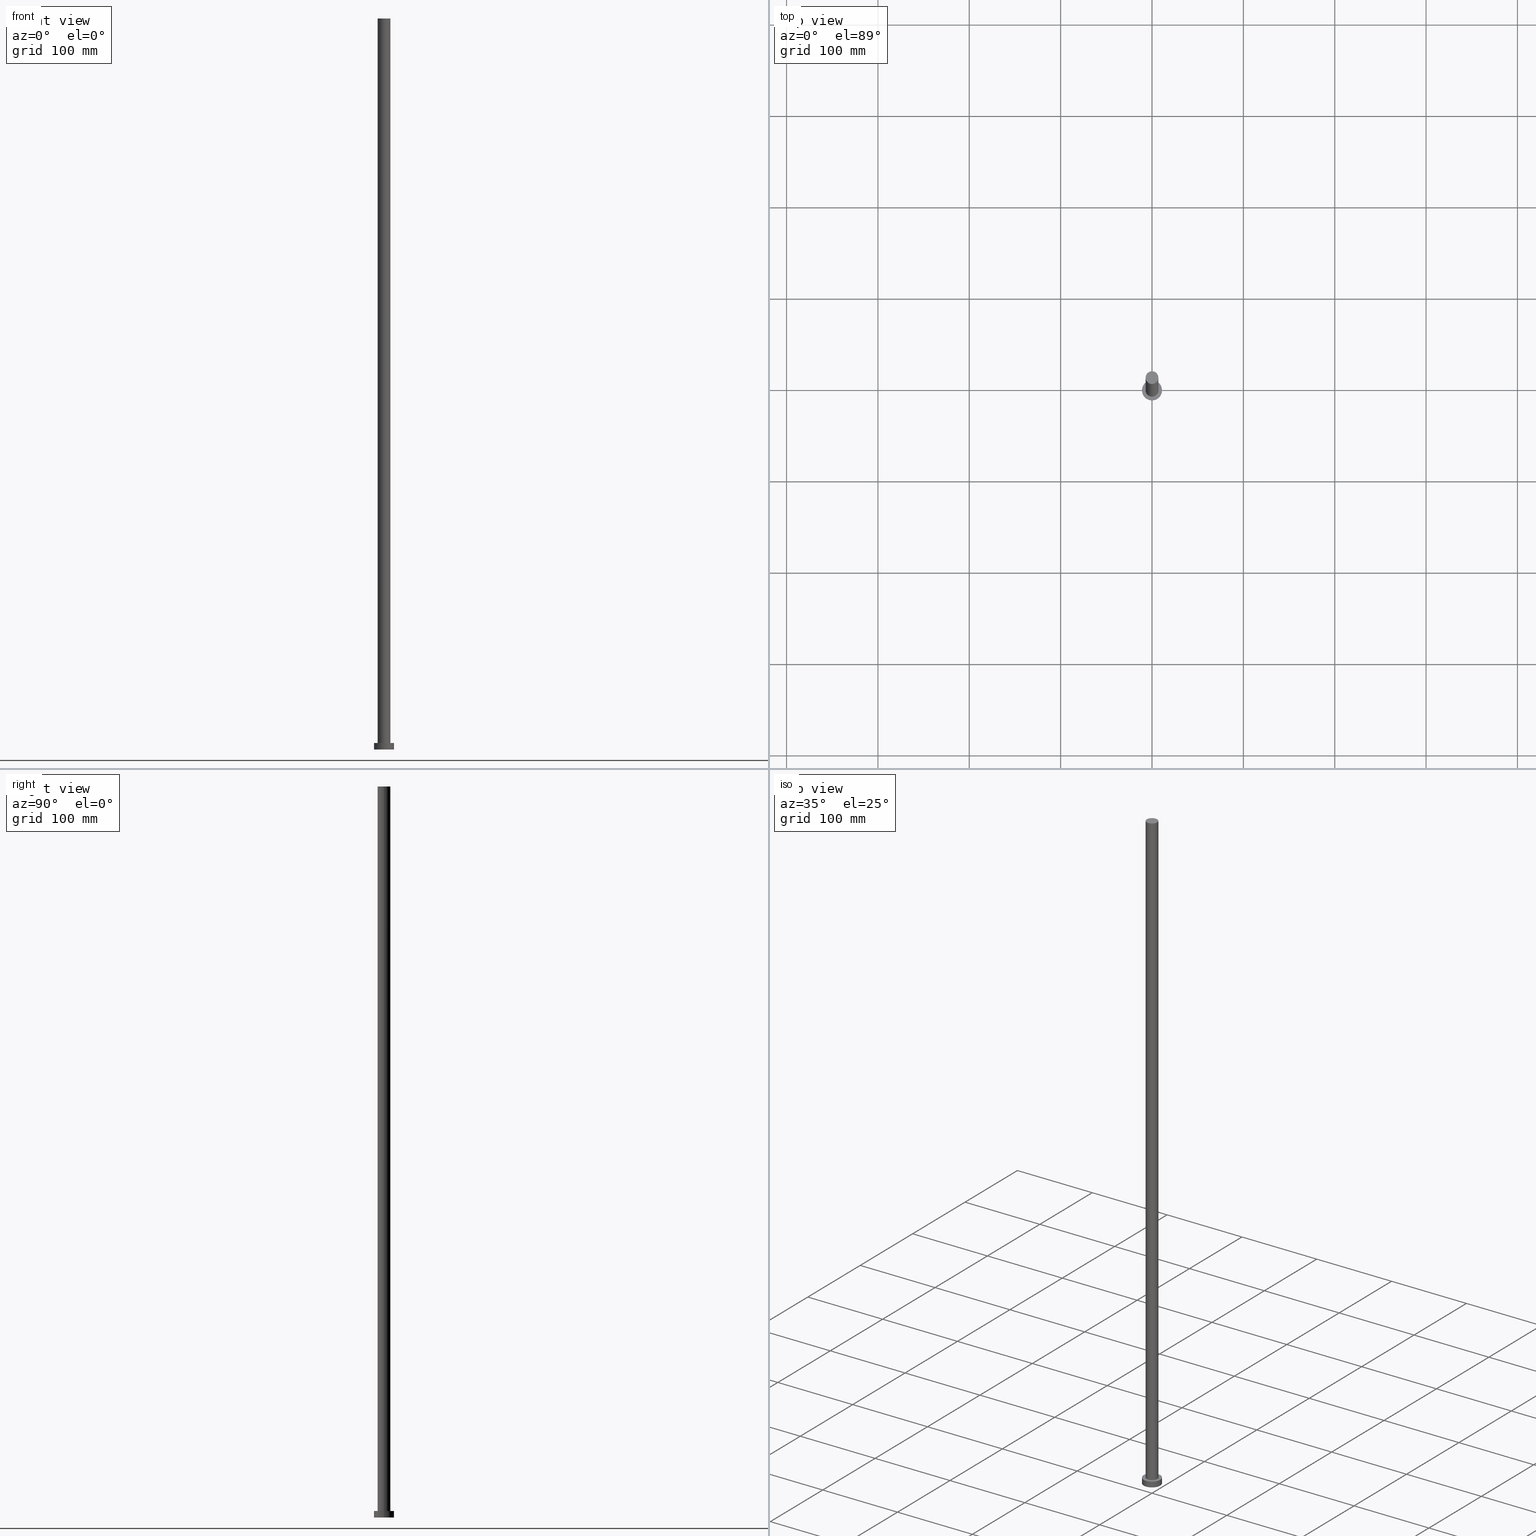
[diagram: canonical four-view strip — front | top / right | iso, engineering-drawing reading convention]
A machine part, canonical four-view strip (front | top / right | iso — engineering-drawing reading convention). The complete STEP part file that produces these views, byte-faithful:
ISO-10303-21;
HEADER;
FILE_DESCRIPTION (( 'STEP AP203' ),
    '1' );
FILE_NAME ('0291.STEP',
    '2023-02-13T08:53:59',
    ( '' ),
    ( '' ),
    'SwSTEP 2.0',
    'SolidWorks 2019',
    '' );
FILE_SCHEMA (( 'CONFIG_CONTROL_DESIGN' ));
ENDSEC;

DATA;
#1 = VERTEX_POINT ( 'NONE', #28 ) ;
#2 = CARTESIAN_POINT ( 'NONE',  ( 11.00000000000000000, 1.347111479062088405E-15, 7.000000000000000000 ) ) ;
#3 = DIRECTION ( 'NONE',  ( -1.000000000000000000, 0.000000000000000000, 0.000000000000000000 ) ) ;
#4 = CC_DESIGN_PERSON_AND_ORGANIZATION_ASSIGNMENT ( #186, #188, ( #31 ) ) ;
#5 = DIRECTION ( 'NONE',  ( 0.000000000000000000, 0.000000000000000000, 1.000000000000000000 ) ) ;
#6 = APPLICATION_PROTOCOL_DEFINITION ( 'international standard', 'config_control_design', 1994, #167 ) ;
#7 = ORGANIZATION ( 'NEUR�EN�', 'NEUR�EN�', '' ) ;
#8 = PERSON_AND_ORGANIZATION_ROLE ( 'classification_officer' ) ;
#9 = CALENDAR_DATE ( 2023, 13, 2 ) ;
#10 = ORIENTED_EDGE ( 'NONE', *, *, #101, .T. ) ;
#11 = FACE_OUTER_BOUND ( 'NONE', #71, .T. ) ;
#12 = PRODUCT_RELATED_PRODUCT_CATEGORY ( 'detail', '', ( #134 ) ) ;
#13 = ORIENTED_EDGE ( 'NONE', *, *, #178, .T. ) ;
#14 = ORIENTED_EDGE ( 'NONE', *, *, #153, .F. ) ;
#15 = DIRECTION ( 'NONE',  ( 1.000000000000000000, 0.000000000000000000, 0.000000000000000000 ) ) ;
#16 = APPROVAL_PERSON_ORGANIZATION ( #224, #228, #78 ) ;
#17 = ADVANCED_FACE ( 'NONE', ( #254 ), #135, .T. ) ;
#18 = DIRECTION ( 'NONE',  ( -0.000000000000000000, -0.000000000000000000, -1.000000000000000000 ) ) ;
#19 = LINE ( 'NONE', #200, #99 ) ;
#20 = CARTESIAN_POINT ( 'NONE',  ( -7.000000000000000888, 0.000000000000000000, 800.0000000000000000 ) ) ;
#21 =( NAMED_UNIT ( * ) SI_UNIT ( $, .STERADIAN. ) SOLID_ANGLE_UNIT ( ) );
#22 = LOCAL_TIME ( 9, 53, 59.00000000000000000, #123 ) ;
#23 = DIRECTION ( 'NONE',  ( 1.000000000000000000, 0.000000000000000000, 0.000000000000000000 ) ) ;
#24 = ORIENTED_EDGE ( 'NONE', *, *, #101, .F. ) ;
#25 = PERSON_AND_ORGANIZATION ( #92, #7 ) ;
#26 = AXIS2_PLACEMENT_3D ( 'NONE', #109, #116, #180 ) ;
#27 = DATE_AND_TIME ( #68, #238 ) ;
#28 = CARTESIAN_POINT ( 'NONE',  ( 11.00000000000000000, 1.347111479062088405E-15, 7.000000000000000000 ) ) ;
#29 = DIRECTION ( 'NONE',  ( -0.000000000000000000, -0.000000000000000000, -1.000000000000000000 ) ) ;
#30 = AXIS2_PLACEMENT_3D ( 'NONE', #215, #112, #32 ) ;
#31 = PRODUCT_DEFINITION_FORMATION_WITH_SPECIFIED_SOURCE ( 'LIBOVOLN�', '', #134, .NOT_KNOWN. ) ;
#32 = DIRECTION ( 'NONE',  ( -1.000000000000000000, 0.000000000000000000, 0.000000000000000000 ) ) ;
#33 = DIRECTION ( 'NONE',  ( -0.000000000000000000, -0.000000000000000000, -1.000000000000000000 ) ) ;
#34 = ORIENTED_EDGE ( 'NONE', *, *, #178, .F. ) ;
#35 = CIRCLE ( 'NONE', #114, 7.000000000000000888 ) ;
#36 = APPLICATION_CONTEXT ( 'configuration controlled 3d designs of mechanical parts and assemblies' ) ;
#37 = ADVANCED_FACE ( 'NONE', ( #11 ), #212, .T. ) ;
#38 = DIRECTION ( 'NONE',  ( 1.000000000000000000, 0.000000000000000000, 0.000000000000000000 ) ) ;
#39 = DIRECTION ( 'NONE',  ( 1.000000000000000000, 0.000000000000000000, -0.000000000000000000 ) ) ;
#40 = FACE_OUTER_BOUND ( 'NONE', #177, .T. ) ;
#41 = ORIENTED_EDGE ( 'NONE', *, *, #85, .F. ) ;
#42 = EDGE_CURVE ( 'NONE', #50, #108, #94, .T. ) ;
#43 = DATE_TIME_ROLE ( 'classification_date' ) ;
#44 = LOCAL_TIME ( 9, 53, 59.00000000000000000, #63 ) ;
#45 = APPROVAL_DATE_TIME ( #106, #228 ) ;
#46 = APPROVAL_DATE_TIME ( #98, #107 ) ;
#47 = EDGE_CURVE ( 'NONE', #197, #154, #35, .T. ) ;
#48 = APPROVAL_DATE_TIME ( #170, #219 ) ;
#49 = DIRECTION ( 'NONE',  ( -1.000000000000000000, 0.000000000000000000, 0.000000000000000000 ) ) ;
#50 = VERTEX_POINT ( 'NONE', #130 ) ;
#51 = EDGE_LOOP ( 'NONE', ( #255, #81, #210, #214 ) ) ;
#52 = CIRCLE ( 'NONE', #79, 7.000000000000000888 ) ;
#53 = VERTEX_POINT ( 'NONE', #113 ) ;
#54 = EDGE_LOOP ( 'NONE', ( #233, #171 ) ) ;
#55 = CC_DESIGN_PERSON_AND_ORGANIZATION_ASSIGNMENT ( #25, #168, ( #134 ) ) ;
#56 = CC_DESIGN_APPROVAL ( #219, ( #31 ) ) ;
#57 = CARTESIAN_POINT ( 'NONE',  ( 0.000000000000000000, 0.000000000000000000, 800.0000000000000000 ) ) ;
#58 = CC_DESIGN_PERSON_AND_ORGANIZATION_ASSIGNMENT ( #248, #8, ( #206 ) ) ;
#59 = DIRECTION ( 'NONE',  ( -1.000000000000000000, 0.000000000000000000, 0.000000000000000000 ) ) ;
#60 =( NAMED_UNIT ( * ) PLANE_ANGLE_UNIT ( ) SI_UNIT ( $, .RADIAN. ) );
#61 = CARTESIAN_POINT ( 'NONE',  ( 0.000000000000000000, 0.000000000000000000, 7.000000000000000000 ) ) ;
#62 = CC_DESIGN_DATE_AND_TIME_ASSIGNMENT ( #207, #102, ( #249 ) ) ;
#63 = COORDINATED_UNIVERSAL_TIME_OFFSET ( 1, 0, .AHEAD. ) ;
#64 = AXIS2_PLACEMENT_3D ( 'NONE', #57, #120, #91 ) ;
#65 = APPLICATION_PROTOCOL_DEFINITION ( 'international standard', 'config_control_design', 1994, #36 ) ;
#66 = CIRCLE ( 'NONE', #161, 7.000000000000000888 ) ;
#67 = APPROVAL_ROLE ( '' ) ;
#68 = CALENDAR_DATE ( 2023, 13, 2 ) ;
#69 = CIRCLE ( 'NONE', #213, 7.000000000000000888 ) ;
#70 = DIRECTION ( 'NONE',  ( 0.000000000000000000, 0.000000000000000000, 1.000000000000000000 ) ) ;
#71 = EDGE_LOOP ( 'NONE', ( #34, #199, #253, #24 ) ) ;
#72 = DIRECTION ( 'NONE',  ( 1.000000000000000000, 0.000000000000000000, 0.000000000000000000 ) ) ;
#73 = DIRECTION ( 'NONE',  ( 1.000000000000000000, 0.000000000000000000, 0.000000000000000000 ) ) ;
#74 = DIRECTION ( 'NONE',  ( 1.000000000000000000, 0.000000000000000000, -0.000000000000000000 ) ) ;
#75 = DIRECTION ( 'NONE',  ( -0.000000000000000000, -0.000000000000000000, -1.000000000000000000 ) ) ;
#76 = LINE ( 'NONE', #163, #119 ) ;
#77 = AXIS2_PLACEMENT_3D ( 'NONE', #122, #220, #3 ) ;
#78 = APPROVAL_ROLE ( '' ) ;
#79 = AXIS2_PLACEMENT_3D ( 'NONE', #89, #70, #15 ) ;
#80 = CARTESIAN_POINT ( 'NONE',  ( 0.000000000000000000, 0.000000000000000000, 0.000000000000000000 ) ) ;
#81 = ORIENTED_EDGE ( 'NONE', *, *, #129, .T. ) ;
#82 = CC_DESIGN_APPROVAL ( #107, ( #249 ) ) ;
#83 = EDGE_LOOP ( 'NONE', ( #136, #13 ) ) ;
#84 = CARTESIAN_POINT ( 'NONE',  ( 0.000000000000000000, 0.000000000000000000, 7.000000000000000000 ) ) ;
#85 = EDGE_CURVE ( 'NONE', #235, #53, #52, .T. ) ;
#86 = ADVANCED_BREP_SHAPE_REPRESENTATION ( '0291', ( #96, #88 ), #251 ) ;
#87 = ORIENTED_EDGE ( 'NONE', *, *, #129, .F. ) ;
#88 = AXIS2_PLACEMENT_3D ( 'NONE', #80, #125, #23 ) ;
#89 = CARTESIAN_POINT ( 'NONE',  ( 0.000000000000000000, 0.000000000000000000, 800.0000000000000000 ) ) ;
#90 = EDGE_CURVE ( 'NONE', #108, #50, #149, .T. ) ;
#91 = DIRECTION ( 'NONE',  ( 1.000000000000000000, 0.000000000000000000, -0.000000000000000000 ) ) ;
#92 = PERSON ( 'NEUR�EN�', 'NEUR�EN�', 'NEUR�EN�', ('NEUR�EN�'), ('NEUR�EN�'), ('NEUR�EN�') ) ;
#93 = CARTESIAN_POINT ( 'NONE',  ( 7.000000000000000888, 8.572527594031474176E-16, 7.000000000000000000 ) ) ;
#94 = CIRCLE ( 'NONE', #246, 11.00000000000000000 ) ;
#95 = DIRECTION ( 'NONE',  ( -0.000000000000000000, -0.000000000000000000, -1.000000000000000000 ) ) ;
#96 = MANIFOLD_SOLID_BREP ( 'P�idat vysunut�m3', #176 ) ;
#97 = FACE_OUTER_BOUND ( 'NONE', #51, .T. ) ;
#98 = DATE_AND_TIME ( #9, #22 ) ;
#99 = VECTOR ( 'NONE', #95, 1000.000000000000000 ) ;
#100 = MECHANICAL_CONTEXT ( 'NONE', #36, 'mechanical' ) ;
#101 = EDGE_CURVE ( 'NONE', #235, #197, #152, .T. ) ;
#102 = DATE_TIME_ROLE ( 'creation_date' ) ;
#103 = CIRCLE ( 'NONE', #26, 11.00000000000000000 ) ;
#104 = APPROVAL_STATUS ( 'not_yet_approved' ) ;
#105 = APPROVAL_PERSON_ORGANIZATION ( #144, #107, #148 ) ;
#106 = DATE_AND_TIME ( #225, #44 ) ;
#107 = APPROVAL ( #104, 'NEUR�EN�' ) ;
#108 = VERTEX_POINT ( 'NONE', #156 ) ;
#109 = CARTESIAN_POINT ( 'NONE',  ( 0.000000000000000000, 0.000000000000000000, 7.000000000000000000 ) ) ;
#110 = ORIENTED_EDGE ( 'NONE', *, *, #47, .T. ) ;
#111 = CC_DESIGN_PERSON_AND_ORGANIZATION_ASSIGNMENT ( #164, #126, ( #249 ) ) ;
#112 = DIRECTION ( 'NONE',  ( -0.000000000000000000, -0.000000000000000000, -1.000000000000000000 ) ) ;
#113 = CARTESIAN_POINT ( 'NONE',  ( 7.000000000000000888, 8.572527594031474176E-16, 800.0000000000000000 ) ) ;
#114 = AXIS2_PLACEMENT_3D ( 'NONE', #84, #175, #72 ) ;
#115 = AXIS2_PLACEMENT_3D ( 'NONE', #137, #5, #222 ) ;
#116 = DIRECTION ( 'NONE',  ( 0.000000000000000000, 0.000000000000000000, 1.000000000000000000 ) ) ;
#117 = FACE_OUTER_BOUND ( 'NONE', #54, .T. ) ;
#118 = DIRECTION ( 'NONE',  ( 0.000000000000000000, 0.000000000000000000, 1.000000000000000000 ) ) ;
#119 = VECTOR ( 'NONE', #159, 1000.000000000000000 ) ;
#120 = DIRECTION ( 'NONE',  ( 0.000000000000000000, 0.000000000000000000, 1.000000000000000000 ) ) ;
#121 = EDGE_CURVE ( 'NONE', #1, #158, #103, .T. ) ;
#122 = CARTESIAN_POINT ( 'NONE',  ( 0.000000000000000000, 0.000000000000000000, 800.0000000000000000 ) ) ;
#123 = COORDINATED_UNIVERSAL_TIME_OFFSET ( 1, 0, .AHEAD. ) ;
#124 = AXIS2_PLACEMENT_3D ( 'NONE', #160, #237, #74 ) ;
#125 = DIRECTION ( 'NONE',  ( 0.000000000000000000, 0.000000000000000000, 1.000000000000000000 ) ) ;
#126 = PERSON_AND_ORGANIZATION_ROLE ( 'creator' ) ;
#127 = PERSON_AND_ORGANIZATION ( #92, #7 ) ;
#128 = LOCAL_TIME ( 9, 53, 59.00000000000000000, #165 ) ;
#129 = EDGE_CURVE ( 'NONE', #1, #108, #141, .T. ) ;
#130 = CARTESIAN_POINT ( 'NONE',  ( -11.00000000000000000, 0.000000000000000000, 0.000000000000000000 ) ) ;
#131 = CARTESIAN_POINT ( 'NONE',  ( -7.000000000000000888, 0.000000000000000000, 800.0000000000000000 ) ) ;
#132 = ADVANCED_FACE ( 'NONE', ( #117 ), #139, .F. ) ;
#133 = EDGE_LOOP ( 'NONE', ( #187, #14 ) ) ;
#134 = PRODUCT ( '0291', '0291', '', ( #100 ) ) ;
#135 = CYLINDRICAL_SURFACE ( 'NONE', #155, 11.00000000000000000 ) ;
#136 = ORIENTED_EDGE ( 'NONE', *, *, #85, .T. ) ;
#137 = CARTESIAN_POINT ( 'NONE',  ( 0.000000000000000000, 0.000000000000000000, 7.000000000000000000 ) ) ;
#138 = CYLINDRICAL_SURFACE ( 'NONE', #77, 7.000000000000000888 ) ;
#139 = PLANE ( 'NONE',  #124 ) ;
#140 = ADVANCED_FACE ( 'NONE', ( #239 ), #182, .T. ) ;
#141 = LINE ( 'NONE', #2, #142 ) ;
#142 = VECTOR ( 'NONE', #18, 1000.000000000000000 ) ;
#143 = CARTESIAN_POINT ( 'NONE',  ( -7.000000000000000888, 0.000000000000000000, 7.000000000000000000 ) ) ;
#144 = PERSON_AND_ORGANIZATION ( #92, #7 ) ;
#145 = PRODUCT_DEFINITION_SHAPE ( 'NONE', 'NONE',  #249 ) ;
#146 = ADVANCED_FACE ( 'NONE', ( #97 ), #201, .T. ) ;
#147 = APPROVAL_STATUS ( 'not_yet_approved' ) ;
#148 = APPROVAL_ROLE ( '' ) ;
#149 = CIRCLE ( 'NONE', #231, 11.00000000000000000 ) ;
#150 = ORIENTED_EDGE ( 'NONE', *, *, #42, .T. ) ;
#151 = CC_DESIGN_APPROVAL ( #228, ( #206 ) ) ;
#152 = LINE ( 'NONE', #131, #191 ) ;
#153 = EDGE_CURVE ( 'NONE', #154, #197, #66, .T. ) ;
#154 = VERTEX_POINT ( 'NONE', #93 ) ;
#155 = AXIS2_PLACEMENT_3D ( 'NONE', #193, #33, #49 ) ;
#156 = CARTESIAN_POINT ( 'NONE',  ( 11.00000000000000000, 1.347111479062088405E-15, 0.000000000000000000 ) ) ;
#157 = CIRCLE ( 'NONE', #115, 11.00000000000000000 ) ;
#158 = VERTEX_POINT ( 'NONE', #241 ) ;
#159 = DIRECTION ( 'NONE',  ( -0.000000000000000000, -0.000000000000000000, -1.000000000000000000 ) ) ;
#160 = CARTESIAN_POINT ( 'NONE',  ( 0.000000000000000000, 0.000000000000000000, 0.000000000000000000 ) ) ;
#161 = AXIS2_PLACEMENT_3D ( 'NONE', #162, #221, #183 ) ;
#162 = CARTESIAN_POINT ( 'NONE',  ( 0.000000000000000000, 0.000000000000000000, 7.000000000000000000 ) ) ;
#163 = CARTESIAN_POINT ( 'NONE',  ( 7.000000000000000888, 8.572527594031474176E-16, 800.0000000000000000 ) ) ;
#164 = PERSON_AND_ORGANIZATION ( #92, #7 ) ;
#165 = COORDINATED_UNIVERSAL_TIME_OFFSET ( 1, 0, .AHEAD. ) ;
#166 = EDGE_CURVE ( 'NONE', #158, #1, #157, .T. ) ;
#167 = APPLICATION_CONTEXT ( 'configuration controlled 3d designs of mechanical parts and assemblies' ) ;
#168 = PERSON_AND_ORGANIZATION_ROLE ( 'design_owner' ) ;
#169 = ORIENTED_EDGE ( 'NONE', *, *, #121, .T. ) ;
#170 = DATE_AND_TIME ( #209, #128 ) ;
#171 = ORIENTED_EDGE ( 'NONE', *, *, #90, .F. ) ;
#172 = LOCAL_TIME ( 9, 53, 59.00000000000000000, #185 ) ;
#173 = ADVANCED_FACE ( 'NONE', ( #203, #40 ), #202, .T. ) ;
#174 = EDGE_LOOP ( 'NONE', ( #87, #189, #250, #150 ) ) ;
#175 = DIRECTION ( 'NONE',  ( 0.000000000000000000, 0.000000000000000000, 1.000000000000000000 ) ) ;
#176 = CLOSED_SHELL ( 'NONE', ( #37, #146, #17, #173, #132, #204, #140 ) ) ;
#177 = EDGE_LOOP ( 'NONE', ( #230, #169 ) ) ;
#178 = EDGE_CURVE ( 'NONE', #53, #235, #69, .T. ) ;
#179 = DIRECTION ( 'NONE',  ( 1.000000000000000000, 0.000000000000000000, 0.000000000000000000 ) ) ;
#180 = DIRECTION ( 'NONE',  ( 1.000000000000000000, 0.000000000000000000, 0.000000000000000000 ) ) ;
#181 = FACE_OUTER_BOUND ( 'NONE', #227, .T. ) ;
#182 = PLANE ( 'NONE',  #64 ) ;
#183 = DIRECTION ( 'NONE',  ( 1.000000000000000000, 0.000000000000000000, 0.000000000000000000 ) ) ;
#184 = CC_DESIGN_DATE_AND_TIME_ASSIGNMENT ( #27, #43, ( #206 ) ) ;
#185 = COORDINATED_UNIVERSAL_TIME_OFFSET ( 1, 0, .AHEAD. ) ;
#186 = PERSON_AND_ORGANIZATION ( #92, #7 ) ;
#187 = ORIENTED_EDGE ( 'NONE', *, *, #47, .F. ) ;
#188 = PERSON_AND_ORGANIZATION_ROLE ( 'creator' ) ;
#189 = ORIENTED_EDGE ( 'NONE', *, *, #166, .F. ) ;
#190 = EDGE_CURVE ( 'NONE', #158, #50, #19, .T. ) ;
#191 = VECTOR ( 'NONE', #29, 1000.000000000000000 ) ;
#192 = CALENDAR_DATE ( 2023, 13, 2 ) ;
#193 = CARTESIAN_POINT ( 'NONE',  ( 0.000000000000000000, 0.000000000000000000, 7.000000000000000000 ) ) ;
#194 = CARTESIAN_POINT ( 'NONE',  ( 0.000000000000000000, 0.000000000000000000, 0.000000000000000000 ) ) ;
#195 = CC_DESIGN_SECURITY_CLASSIFICATION ( #206, ( #31 ) ) ;
#196 = CARTESIAN_POINT ( 'NONE',  ( 0.000000000000000000, 0.000000000000000000, 0.000000000000000000 ) ) ;
#197 = VERTEX_POINT ( 'NONE', #143 ) ;
#198 = CC_DESIGN_PERSON_AND_ORGANIZATION_ASSIGNMENT ( #208, #244, ( #31 ) ) ;
#199 = ORIENTED_EDGE ( 'NONE', *, *, #232, .T. ) ;
#200 = CARTESIAN_POINT ( 'NONE',  ( -11.00000000000000000, 0.000000000000000000, 7.000000000000000000 ) ) ;
#201 = CYLINDRICAL_SURFACE ( 'NONE', #234, 11.00000000000000000 ) ;
#202 = PLANE ( 'NONE',  #218 ) ;
#203 = FACE_BOUND ( 'NONE', #133, .T. ) ;
#204 = ADVANCED_FACE ( 'NONE', ( #181 ), #138, .T. ) ;
#205 = UNCERTAINTY_MEASURE_WITH_UNIT (LENGTH_MEASURE( 1.000000000000000082E-05 ), #240, 'distance_accuracy_value', 'NONE');
#206 = SECURITY_CLASSIFICATION ( '', '', #247 ) ;
#207 = DATE_AND_TIME ( #192, #172 ) ;
#208 = PERSON_AND_ORGANIZATION ( #92, #7 ) ;
#209 = CALENDAR_DATE ( 2023, 13, 2 ) ;
#210 = ORIENTED_EDGE ( 'NONE', *, *, #90, .T. ) ;
#211 = DIRECTION ( 'NONE',  ( 0.000000000000000000, 0.000000000000000000, 1.000000000000000000 ) ) ;
#212 = CYLINDRICAL_SURFACE ( 'NONE', #30, 7.000000000000000888 ) ;
#213 = AXIS2_PLACEMENT_3D ( 'NONE', #223, #118, #38 ) ;
#214 = ORIENTED_EDGE ( 'NONE', *, *, #190, .F. ) ;
#215 = CARTESIAN_POINT ( 'NONE',  ( 0.000000000000000000, 0.000000000000000000, 800.0000000000000000 ) ) ;
#216 = DESIGN_CONTEXT ( 'detailed design', #167, 'design' ) ;
#217 = DIRECTION ( 'NONE',  ( 0.000000000000000000, 0.000000000000000000, 1.000000000000000000 ) ) ;
#218 = AXIS2_PLACEMENT_3D ( 'NONE', #61, #217, #39 ) ;
#219 = APPROVAL ( #226, 'NEUR�EN�' ) ;
#220 = DIRECTION ( 'NONE',  ( -0.000000000000000000, -0.000000000000000000, -1.000000000000000000 ) ) ;
#221 = DIRECTION ( 'NONE',  ( 0.000000000000000000, 0.000000000000000000, 1.000000000000000000 ) ) ;
#222 = DIRECTION ( 'NONE',  ( 1.000000000000000000, 0.000000000000000000, 0.000000000000000000 ) ) ;
#223 = CARTESIAN_POINT ( 'NONE',  ( 0.000000000000000000, 0.000000000000000000, 800.0000000000000000 ) ) ;
#224 = PERSON_AND_ORGANIZATION ( #92, #7 ) ;
#225 = CALENDAR_DATE ( 2023, 13, 2 ) ;
#226 = APPROVAL_STATUS ( 'not_yet_approved' ) ;
#227 = EDGE_LOOP ( 'NONE', ( #229, #41, #10, #110 ) ) ;
#228 = APPROVAL ( #147, 'NEUR�EN�' ) ;
#229 = ORIENTED_EDGE ( 'NONE', *, *, #232, .F. ) ;
#230 = ORIENTED_EDGE ( 'NONE', *, *, #166, .T. ) ;
#231 = AXIS2_PLACEMENT_3D ( 'NONE', #194, #211, #179 ) ;
#232 = EDGE_CURVE ( 'NONE', #53, #154, #76, .T. ) ;
#233 = ORIENTED_EDGE ( 'NONE', *, *, #42, .F. ) ;
#234 = AXIS2_PLACEMENT_3D ( 'NONE', #236, #75, #59 ) ;
#235 = VERTEX_POINT ( 'NONE', #20 ) ;
#236 = CARTESIAN_POINT ( 'NONE',  ( 0.000000000000000000, 0.000000000000000000, 7.000000000000000000 ) ) ;
#237 = DIRECTION ( 'NONE',  ( 0.000000000000000000, 0.000000000000000000, 1.000000000000000000 ) ) ;
#238 = LOCAL_TIME ( 9, 53, 59.00000000000000000, #245 ) ;
#239 = FACE_OUTER_BOUND ( 'NONE', #83, .T. ) ;
#240 =( LENGTH_UNIT ( ) NAMED_UNIT ( * ) SI_UNIT ( .MILLI., .METRE. ) );
#241 = CARTESIAN_POINT ( 'NONE',  ( -11.00000000000000000, 0.000000000000000000, 7.000000000000000000 ) ) ;
#242 = APPROVAL_PERSON_ORGANIZATION ( #127, #219, #67 ) ;
#243 = SHAPE_DEFINITION_REPRESENTATION ( #145, #86 ) ;
#244 = PERSON_AND_ORGANIZATION_ROLE ( 'design_supplier' ) ;
#245 = COORDINATED_UNIVERSAL_TIME_OFFSET ( 1, 0, .AHEAD. ) ;
#246 = AXIS2_PLACEMENT_3D ( 'NONE', #196, #252, #73 ) ;
#247 = SECURITY_CLASSIFICATION_LEVEL ( 'unclassified' ) ;
#248 = PERSON_AND_ORGANIZATION ( #92, #7 ) ;
#249 = PRODUCT_DEFINITION ( 'NEZN�M�', '', #31, #216 ) ;
#250 = ORIENTED_EDGE ( 'NONE', *, *, #190, .T. ) ;
#251 =( GEOMETRIC_REPRESENTATION_CONTEXT ( 3 ) GLOBAL_UNCERTAINTY_ASSIGNED_CONTEXT ( ( #205 ) ) GLOBAL_UNIT_ASSIGNED_CONTEXT ( ( #240, #60, #21 ) ) REPRESENTATION_CONTEXT ( 'NONE', 'WORKASPACE' ) );
#252 = DIRECTION ( 'NONE',  ( 0.000000000000000000, 0.000000000000000000, 1.000000000000000000 ) ) ;
#253 = ORIENTED_EDGE ( 'NONE', *, *, #153, .T. ) ;
#254 = FACE_OUTER_BOUND ( 'NONE', #174, .T. ) ;
#255 = ORIENTED_EDGE ( 'NONE', *, *, #121, .F. ) ;
ENDSEC;
END-ISO-10303-21;
